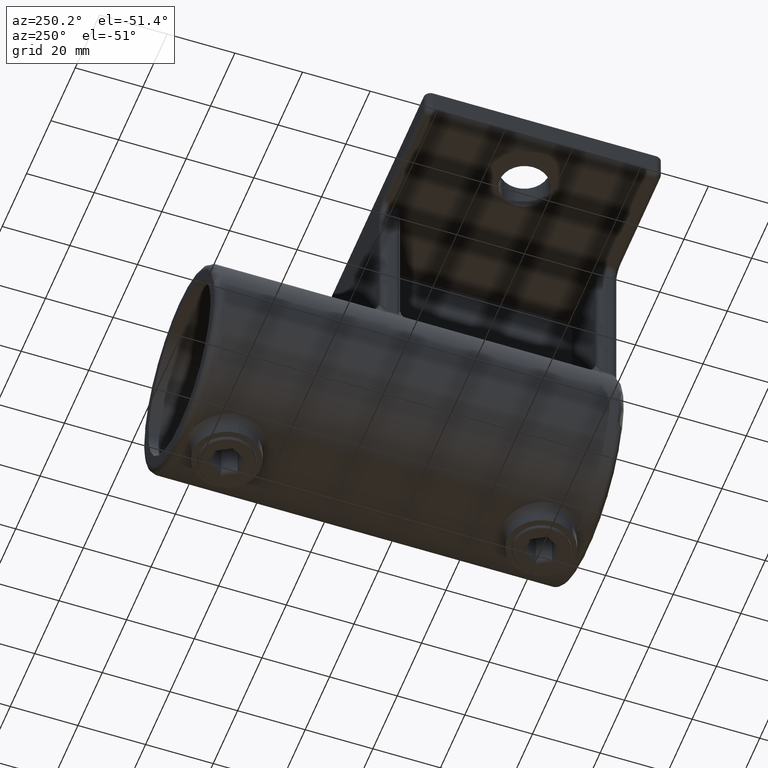
[diagram: clean part render]
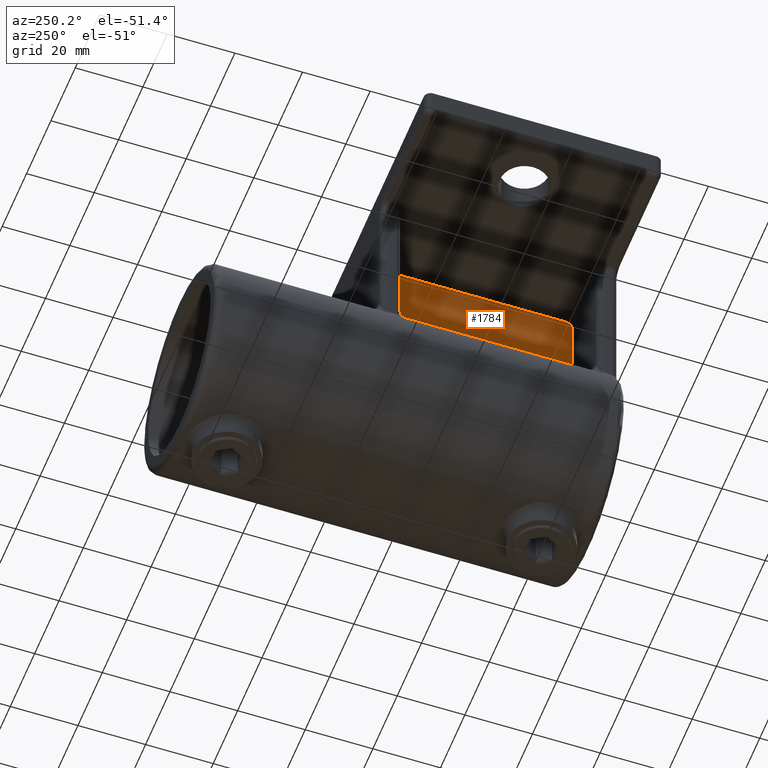
[diagram: same view with one face highlighted and labeled with its STEP entity id]
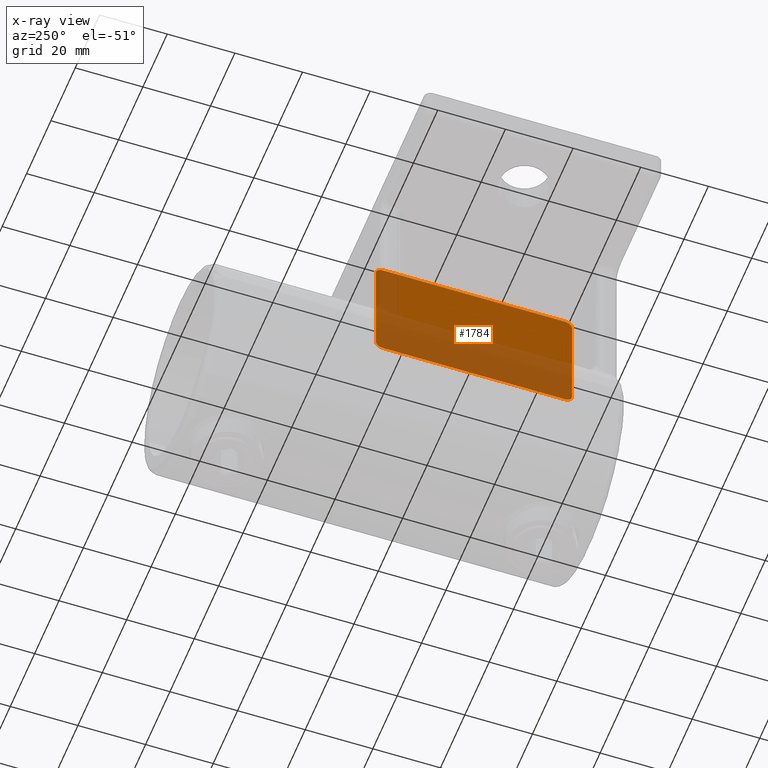
[diagram: x-ray of the same camera — body ghosted, the highlighted face saturated]
A machine part, auxiliary view. The second image highlights one B-rep face of the part: STEP entity #1784.
The next image is the same camera in x-ray: the body ghosted, the highlighted face saturated — about 54% of this face is hidden behind the body in this view.
In plain terms, the highlighted planar face has unit normal (1, -0, 0).
Its self-contained STEP definition (entity closure, byte-faithful):
#90 = CARTESIAN_POINT ( 'NONE',  ( -3.000000000000006661, -27.64566433109278876, -34.54485463627054287 ) ) ;
#91 = ORIENTED_EDGE ( 'NONE', *, *, #4954, .T. ) ;
#95 = AXIS2_PLACEMENT_3D ( 'NONE', #4813, #2475, #1737 ) ;
#127 = CARTESIAN_POINT ( 'NONE',  ( -3.000000000000000000, 27.88884444167949539, -34.44328626859038422 ) ) ;
#228 = DIRECTION ( 'NONE',  ( -0.000000000000000000, -1.000000000000000000, -0.000000000000000000 ) ) ;
#460 = EDGE_CURVE ( 'NONE', #2404, #4254, #1330, .T. ) ;
#478 = CARTESIAN_POINT ( 'NONE',  ( -3.000000000000007550, -28.32314508919469986, -34.15094484195221725 ) ) ;
#506 = CARTESIAN_POINT ( 'NONE',  ( -3.000000000000006217, -27.26248533582054279, -34.63482695717919313 ) ) ;
#575 = CARTESIAN_POINT ( 'NONE',  ( -3.000000000000006217, -27.00000000000000711, -2.000000000009549694 ) ) ;
#725 = CIRCLE ( 'NONE', #2709, 1.999999999999998224 ) ;
#741 = VERTEX_POINT ( 'NONE', #1088 ) ;
#840 = CARTESIAN_POINT ( 'NONE',  ( -3.000000000000000000, 29.00000000000000355, -500000.0000000000582 ) ) ;
#892 = EDGE_CURVE ( 'NONE', #1643, #1399, #2518, .T. ) ;
#916 = CARTESIAN_POINT ( 'NONE',  ( -3.000000000000007105, 27.00000000000001066, -34.64789957844763535 ) ) ;
#1088 = CARTESIAN_POINT ( 'NONE',  ( -3.000000000000007105, -29.00000000000000355, -32.63875774956659370 ) ) ;
#1242 = CARTESIAN_POINT ( 'NONE',  ( -3.000000000000006661, -28.00290877069471662, -34.38192250254953564 ) ) ;
#1287 = EDGE_LOOP ( 'NONE', ( #4304, #4456, #3060, #2842, #3428, #91, #4662, #4105 ) ) ;
#1292 = CARTESIAN_POINT ( 'NONE',  ( -3.000000000000007550, -28.22032697864514716, -34.23586518241982901 ) ) ;
#1298 = CARTESIAN_POINT ( 'NONE',  ( -2.999999999999999556, 28.32418318887239295, -34.15003166440607174 ) ) ;
#1311 = VECTOR ( 'NONE', #2749, 1000.000000000000000 ) ;
#1330 = LINE ( 'NONE', #4045, #2728 ) ;
#1388 = LINE ( 'NONE', #1616, #4079 ) ;
#1399 = VERTEX_POINT ( 'NONE', #3566 ) ;
#1580 = DIRECTION ( 'NONE',  ( 1.000000000000000000, -1.196361017915039239E-16, 0.000000000000000000 ) ) ;
#1616 = CARTESIAN_POINT ( 'NONE',  ( -3.000000000000000000, 29.00000000000000355, 0.000000000000000000 ) ) ;
#1637 = CARTESIAN_POINT ( 'NONE',  ( -3.000000000000000000, 29.00000000000000355, -32.63875774956659370 ) ) ;
#1643 = VERTEX_POINT ( 'NONE', #3272 ) ;
#1665 = CARTESIAN_POINT ( 'NONE',  ( -2.999999999999999556, 28.79835683515795708, -33.52754829268591408 ) ) ;
#1701 = CARTESIAN_POINT ( 'NONE',  ( -3.000000000000000444, 27.26473520888536939, -34.64789957844761403 ) ) ;
#1737 = DIRECTION ( 'NONE',  ( 2.168404344971010840E-16, 1.000000000000000000, 0.000000000000000000 ) ) ;
#1784 = ADVANCED_FACE ( 'NONE', ( #3782 ), #3099, .F. ) ;
#1960 = CARTESIAN_POINT ( 'NONE',  ( -3.000000000000006661, -27.00000000000000355, 0.000000000000000000 ) ) ;
#2063 = DIRECTION ( 'NONE',  ( 1.196361017915039239E-16, 1.000000000000000000, -0.000000000000000000 ) ) ;
#2230 = VERTEX_POINT ( 'NONE', #4237 ) ;
#2315 = CARTESIAN_POINT ( 'NONE',  ( -3.000000000000000000, 29.00000000000000355, -500000.0000000000582 ) ) ;
#2404 = VERTEX_POINT ( 'NONE', #2990 ) ;
#2440 = CARTESIAN_POINT ( 'NONE',  ( -3.000000000000000444, 27.52772660678310146, -34.59430282170850290 ) ) ;
#2450 = CARTESIAN_POINT ( 'NONE',  ( -3.000000000000000444, 28.50835070748940936, -33.96446209930757476 ) ) ;
#2475 = DIRECTION ( 'NONE',  ( -1.000000000000000000, 1.196361017915039239E-16, -0.000000000000000000 ) ) ;
#2518 = CIRCLE ( 'NONE', #95, 1.999999999999998224 ) ;
#2709 = AXIS2_PLACEMENT_3D ( 'NONE', #575, #3760, #4479 ) ;
#2714 = VECTOR ( 'NONE', #4965, 1000.000000000000000 ) ;
#2728 = VECTOR ( 'NONE', #228, 1000.000000000000000 ) ;
#2749 = DIRECTION ( 'NONE',  ( -0.000000000000000000, -0.000000000000000000, 1.000000000000000000 ) ) ;
#2798 = CARTESIAN_POINT ( 'NONE',  ( -3.000000000000007105, -27.88800090368244966, -34.44376489916713524 ) ) ;
#2842 = ORIENTED_EDGE ( 'NONE', *, *, #3381, .T. ) ;
#2975 = AXIS2_PLACEMENT_3D ( 'NONE', #840, #1580, #3480 ) ;
#2990 = CARTESIAN_POINT ( 'NONE',  ( -3.000000000000007105, 27.00000000000001066, -34.64789957844763535 ) ) ;
#3060 = ORIENTED_EDGE ( 'NONE', *, *, #3653, .F. ) ;
#3099 = PLANE ( 'NONE',  #2975 ) ;
#3178 = CARTESIAN_POINT ( 'NONE',  ( -3.000000000000007550, -28.74814104859224173, -33.64897466075552046 ) ) ;
#3208 = CARTESIAN_POINT ( 'NONE',  ( -2.999999999989341415, 29.00000000000000355, -32.77110860744893728 ) ) ;
#3222 = CARTESIAN_POINT ( 'NONE',  ( -2.999999999999999556, 28.59259118780042641, -33.86100713127993345 ) ) ;
#3272 = CARTESIAN_POINT ( 'NONE',  ( -3.000000000000000444, 27.00000000000000711, 0.000000000000000000 ) ) ;
#3381 = EDGE_CURVE ( 'NONE', #3558, #2404, #3946, .T. ) ;
#3428 = ORIENTED_EDGE ( 'NONE', *, *, #460, .T. ) ;
#3480 = DIRECTION ( 'NONE',  ( 1.196361017915039239E-16, 1.000000000000000000, 0.000000000000000000 ) ) ;
#3526 = CARTESIAN_POINT ( 'NONE',  ( -3.000000000000008438, -27.13235699243933396, -34.64789957844762824 ) ) ;
#3527 = EDGE_CURVE ( 'NONE', #741, #2230, #4069, .T. ) ;
#3556 = CARTESIAN_POINT ( 'NONE',  ( -3.000000000000000444, 28.89831802610119027, -33.28461556518305997 ) ) ;
#3558 = VERTEX_POINT ( 'NONE', #4648 ) ;
#3565 = CARTESIAN_POINT ( 'NONE',  ( -3.000000000000007994, -28.94716983150150469, -33.16649985882087748 ) ) ;
#3566 = CARTESIAN_POINT ( 'NONE',  ( -3.000000000000000000, 29.00000000000000355, -2.000000000123236532 ) ) ;
#3586 = VERTEX_POINT ( 'NONE', #1960 ) ;
#3653 = EDGE_CURVE ( 'NONE', #3558, #1399, #4730, .T. ) ;
#3760 = DIRECTION ( 'NONE',  ( -1.000000000000000000, 1.196361017915039239E-16, -0.000000000000000000 ) ) ;
#3775 = CARTESIAN_POINT ( 'NONE',  ( -3.000000000000007105, -29.00000000000000355, -500000.0000000000582 ) ) ;
#3782 = FACE_OUTER_BOUND ( 'NONE', #1287, .T. ) ;
#3785 = EDGE_CURVE ( 'NONE', #3586, #1643, #1388, .T. ) ;
#3946 = B_SPLINE_CURVE_WITH_KNOTS ( 'NONE', 3,
 ( #1637, #3208, #4281, #4302, #3556, #1665, #4319, #3222, #2450, #1298, #4732, #3977, #127, #2440, #1701, #916 ),
 .UNSPECIFIED., .F., .F.,
 ( 4, 2, 2, 2, 2, 2, 2, 4 ),
 ( 1.344663500127864330E-13, 0.0003914245368458759929, 0.0007828490735572856546, 0.001174273610268695370, 0.001565698146980105086, 0.001957122683691514368, 0.002348547220402924084, 0.003131396293825743516 ),
 .UNSPECIFIED. ) ;
#3977 = CARTESIAN_POINT ( 'NONE',  ( -2.999999999999999112, 28.00541203714431404, -34.38051677415504059 ) ) ;
#4045 = CARTESIAN_POINT ( 'NONE',  ( -3.000000000000007105, -35.00000000000000000, -34.64789957844763535 ) ) ;
#4069 = LINE ( 'NONE', #3775, #2714 ) ;
#4079 = VECTOR ( 'NONE', #2063, 1000.000000000000000 ) ;
#4105 = ORIENTED_EDGE ( 'NONE', *, *, #4493, .T. ) ;
#4237 = CARTESIAN_POINT ( 'NONE',  ( -3.000000000000007105, -29.00000000000000355, -2.000000000123236532 ) ) ;
#4254 = VERTEX_POINT ( 'NONE', #4839 ) ;
#4281 = CARTESIAN_POINT ( 'NONE',  ( -3.000000000000000000, 28.98710175051758497, -32.90126435828798890 ) ) ;
#4302 = CARTESIAN_POINT ( 'NONE',  ( -3.000000000000000444, 28.93656025575616297, -33.15736459665461666 ) ) ;
#4304 = ORIENTED_EDGE ( 'NONE', *, *, #3785, .T. ) ;
#4309 = CARTESIAN_POINT ( 'NONE',  ( -3.000000000000007105, -27.00000000000000711, -34.64789957844763535 ) ) ;
#4319 = CARTESIAN_POINT ( 'NONE',  ( -3.000000000000000444, 28.73717251207237311, -33.64280501494605602 ) ) ;
#4327 = CARTESIAN_POINT ( 'NONE',  ( -3.000000000000007105, -29.00000000000013856, -32.90343801912820965 ) ) ;
#4336 = B_SPLINE_CURVE_WITH_KNOTS ( 'NONE', 3,
 ( #4309, #3526, #506, #4698, #90, #2798, #1242, #1292, #478, #4679, #3178, #3565, #4327, #4708 ),
 .UNSPECIFIED., .F., .F.,
 ( 4, 2, 2, 2, 2, 2, 4 ),
 ( 0.000000000000000000, 0.0003914235171237083932, 0.0007828470342474167865, 0.001174270551371125017, 0.001565694068494833573, 0.002348541102742264779, 0.003131388136989696203 ),
 .UNSPECIFIED. ) ;
#4456 = ORIENTED_EDGE ( 'NONE', *, *, #892, .T. ) ;
#4479 = DIRECTION ( 'NONE',  ( 2.168404344971010840E-16, 1.000000000000000000, 1.734723475976808672E-15 ) ) ;
#4493 = EDGE_CURVE ( 'NONE', #2230, #3586, #725, .T. ) ;
#4648 = CARTESIAN_POINT ( 'NONE',  ( -3.000000000000000000, 29.00000000000000355, -32.63875774956659370 ) ) ;
#4662 = ORIENTED_EDGE ( 'NONE', *, *, #3527, .T. ) ;
#4679 = CARTESIAN_POINT ( 'NONE',  ( -3.000000000000007994, -28.59949198611386834, -33.87289045725376724 ) ) ;
#4698 = CARTESIAN_POINT ( 'NONE',  ( -3.000000000000006217, -27.51846954631254150, -34.58362058446653720 ) ) ;
#4708 = CARTESIAN_POINT ( 'NONE',  ( -3.000000000000007105, -29.00000000000000355, -32.63875774956659370 ) ) ;
#4730 = LINE ( 'NONE', #2315, #1311 ) ;
#4732 = CARTESIAN_POINT ( 'NONE',  ( -3.000000000000000444, 28.22367526939134308, -34.23333245532191427 ) ) ;
#4813 = CARTESIAN_POINT ( 'NONE',  ( -2.999999999999999112, 27.00000000000000711, -2.000000000009549694 ) ) ;
#4839 = CARTESIAN_POINT ( 'NONE',  ( -3.000000000000007105, -27.00000000000000711, -34.64789957844763535 ) ) ;
#4954 = EDGE_CURVE ( 'NONE', #4254, #741, #4336, .T. ) ;
#4965 = DIRECTION ( 'NONE',  ( -0.000000000000000000, -0.000000000000000000, 1.000000000000000000 ) ) ;